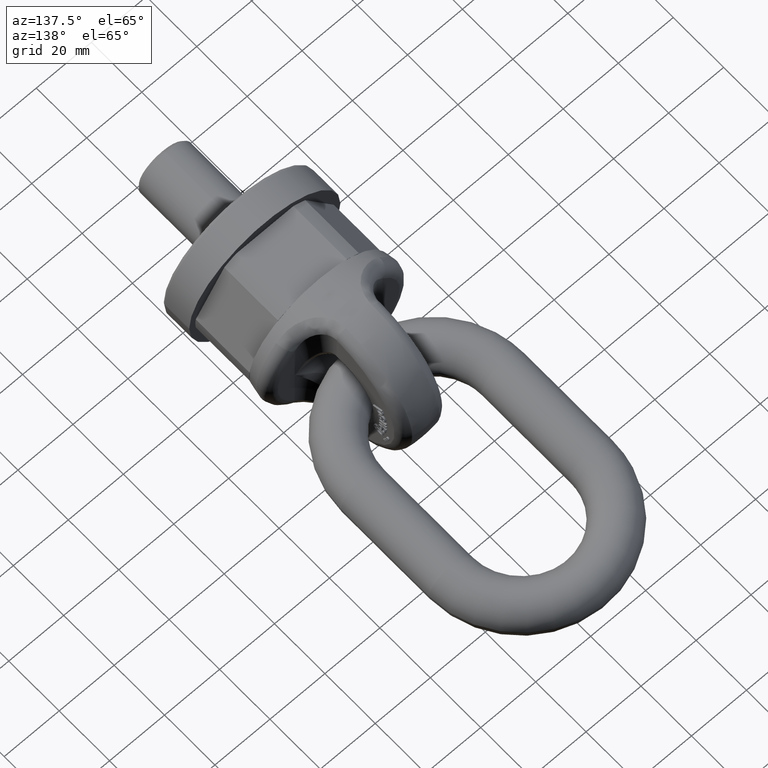
[diagram: clean part render]
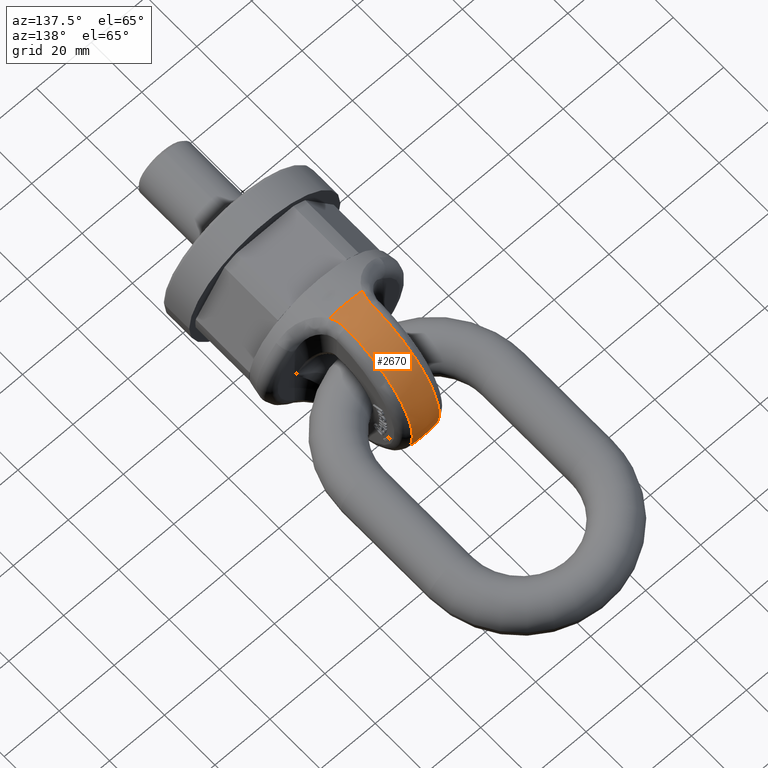
[diagram: same view with one face highlighted and labeled with its STEP entity id]
A machine part, auxiliary view. The second image highlights one B-rep face of the part: STEP entity #2670.
In plain terms, the highlighted spherical surface has radius 27.5 mm.
Its self-contained STEP definition (entity closure, byte-faithful):
#315=SPHERICAL_SURFACE('',#5660,27.5);
#361=B_SPLINE_CURVE_WITH_KNOTS('',3,(#7053,#7054,#7055,#7056),
 .UNSPECIFIED.,.F.,.F.,(4,4),(0.,1.),.UNSPECIFIED.);
#362=B_SPLINE_CURVE_WITH_KNOTS('',3,(#7060,#7061,#7062,#7063),
 .UNSPECIFIED.,.F.,.F.,(4,4),(0.,1.),.UNSPECIFIED.);
#363=B_SPLINE_CURVE_WITH_KNOTS('',3,(#7064,#7065,#7066,#7067),
 .UNSPECIFIED.,.F.,.F.,(4,4),(0.,1.),.UNSPECIFIED.);
#364=B_SPLINE_CURVE_WITH_KNOTS('',3,(#7071,#7072,#7073,#7074),
 .UNSPECIFIED.,.F.,.F.,(4,4),(0.,1.),.UNSPECIFIED.);
#1822=FACE_OUTER_BOUND('',#3106,.T.);
#2670=ADVANCED_FACE('',(#1822),#315,.T.);
#3106=EDGE_LOOP('',(#3530,#3531,#3532,#3533,#3534,#3535,#3536,#3537));
#3530=ORIENTED_EDGE('',*,*,#5068,.F.);
#3531=ORIENTED_EDGE('',*,*,#5075,.T.);
#3532=ORIENTED_EDGE('',*,*,#5076,.T.);
#3533=ORIENTED_EDGE('',*,*,#5077,.T.);
#3534=ORIENTED_EDGE('',*,*,#5072,.F.);
#3535=ORIENTED_EDGE('',*,*,#5078,.T.);
#3536=ORIENTED_EDGE('',*,*,#5079,.T.);
#3537=ORIENTED_EDGE('',*,*,#5080,.T.);
#4655=VERTEX_POINT('',#7023);
#4656=VERTEX_POINT('',#7025);
#4659=VERTEX_POINT('',#7041);
#4660=VERTEX_POINT('',#7043);
#4662=VERTEX_POINT('',#7057);
#4663=VERTEX_POINT('',#7059);
#4664=VERTEX_POINT('',#7068);
#4665=VERTEX_POINT('',#7070);
#5068=EDGE_CURVE('',#4655,#4656,#5562,.T.);
#5072=EDGE_CURVE('',#4659,#4660,#5564,.T.);
#5075=EDGE_CURVE('',#4655,#4662,#361,.T.);
#5076=EDGE_CURVE('',#4662,#4663,#5566,.T.);
#5077=EDGE_CURVE('',#4663,#4660,#362,.T.);
#5078=EDGE_CURVE('',#4659,#4664,#363,.T.);
#5079=EDGE_CURVE('',#4664,#4665,#5567,.T.);
#5080=EDGE_CURVE('',#4665,#4656,#364,.T.);
#5562=CIRCLE('',#5653,27.0988417924046);
#5564=CIRCLE('',#5655,27.0988417924046);
#5566=CIRCLE('',#5658,27.0561128212689);
#5567=CIRCLE('',#5659,27.0561128212689);
#5653=AXIS2_PLACEMENT_3D('',#7024,#5969,#5970);
#5655=AXIS2_PLACEMENT_3D('',#7042,#5973,#5974);
#5658=AXIS2_PLACEMENT_3D('',#7058,#5979,#5980);
#5659=AXIS2_PLACEMENT_3D('',#7069,#5981,#5982);
#5660=AXIS2_PLACEMENT_3D('',#7075,#5983,#5984);
#5969=DIRECTION('',(0.,-1.,0.));
#5970=DIRECTION('',(0.,0.,-1.));
#5973=DIRECTION('',(0.,-1.,0.));
#5974=DIRECTION('',(0.,0.,-1.));
#5979=DIRECTION('',(1.,2.47817639425258E-16,2.34291072916505E-15));
#5980=DIRECTION('',(2.56463075451569E-16,-1.,5.6946242266502E-31));
#5981=DIRECTION('',(-1.,2.47817639425258E-16,0.));
#5982=DIRECTION('',(-2.56463075451569E-16,-1.,0.));
#5983=DIRECTION('',(6.12323399573677E-17,-1.,0.));
#5984=DIRECTION('',(1.,0.,0.));
#7023=CARTESIAN_POINT('',(-5.97855748545769,42.8199600952318,-26.4311194784265));
#7024=CARTESIAN_POINT('',(0.,42.8199600952318,0.));
#7025=CARTESIAN_POINT('',(5.97855748545775,42.8199600952318,-26.4311194784264));
#7041=CARTESIAN_POINT('',(5.97855748545775,42.8199600952318,26.4311194784264));
#7042=CARTESIAN_POINT('',(0.,42.8199600952318,0.));
#7043=CARTESIAN_POINT('',(-5.97855748545781,42.8199600952318,26.4311194784264));
#7053=CARTESIAN_POINT('',(-5.97855748545769,42.8199600952318,-26.4311194784265));
#7054=CARTESIAN_POINT('',(-5.29234158646115,44.4572470475844,-26.8762443805993));
#7055=CARTESIAN_POINT('',(-4.92105263157888,46.248441643119,-27.0890961240213));
#7056=CARTESIAN_POINT('',(-4.92105263157888,48.0789473684211,-27.0499179470443));
#7057=CARTESIAN_POINT('',(-4.92105263157888,48.0789473684211,-27.0499179470443));
#7058=CARTESIAN_POINT('',(-4.92105263157894,47.5,-1.15295870093122E-14));
#7059=CARTESIAN_POINT('',(-4.92105263157901,48.0789473684211,27.0499179470443));
#7060=CARTESIAN_POINT('',(-4.92105263157901,48.0789473684211,27.0499179470443));
#7061=CARTESIAN_POINT('',(-4.92105263157901,46.2488443570525,27.0890875047651));
#7062=CARTESIAN_POINT('',(-5.29266197588806,44.4564826097028,26.8760365548807));
#7063=CARTESIAN_POINT('',(-5.97855748545781,42.8199600952318,26.4311194784264));
#7064=CARTESIAN_POINT('',(5.97855748545775,42.8199600952318,26.4311194784264));
#7065=CARTESIAN_POINT('',(5.29234158646121,44.4572470475844,26.8762443805993));
#7066=CARTESIAN_POINT('',(4.92105263157895,46.248441643119,27.0890961240213));
#7067=CARTESIAN_POINT('',(4.92105263157895,48.0789473684211,27.0499179470443));
#7068=CARTESIAN_POINT('',(4.92105263157894,48.0789473684211,27.0499179470443));
#7069=CARTESIAN_POINT('',(4.92105263157894,47.5,0.));
#7070=CARTESIAN_POINT('',(4.92105263157894,48.0789473684211,-27.0499179470443));
#7071=CARTESIAN_POINT('',(4.92105263157894,48.0789473684211,-27.0499179470443));
#7072=CARTESIAN_POINT('',(4.92105263157894,46.2488443570525,-27.0890875047651));
#7073=CARTESIAN_POINT('',(5.292661975888,44.4564826097028,-26.8760365548808));
#7074=CARTESIAN_POINT('',(5.97855748545775,42.8199600952318,-26.4311194784264));
#7075=CARTESIAN_POINT('',(0.,47.5,0.));